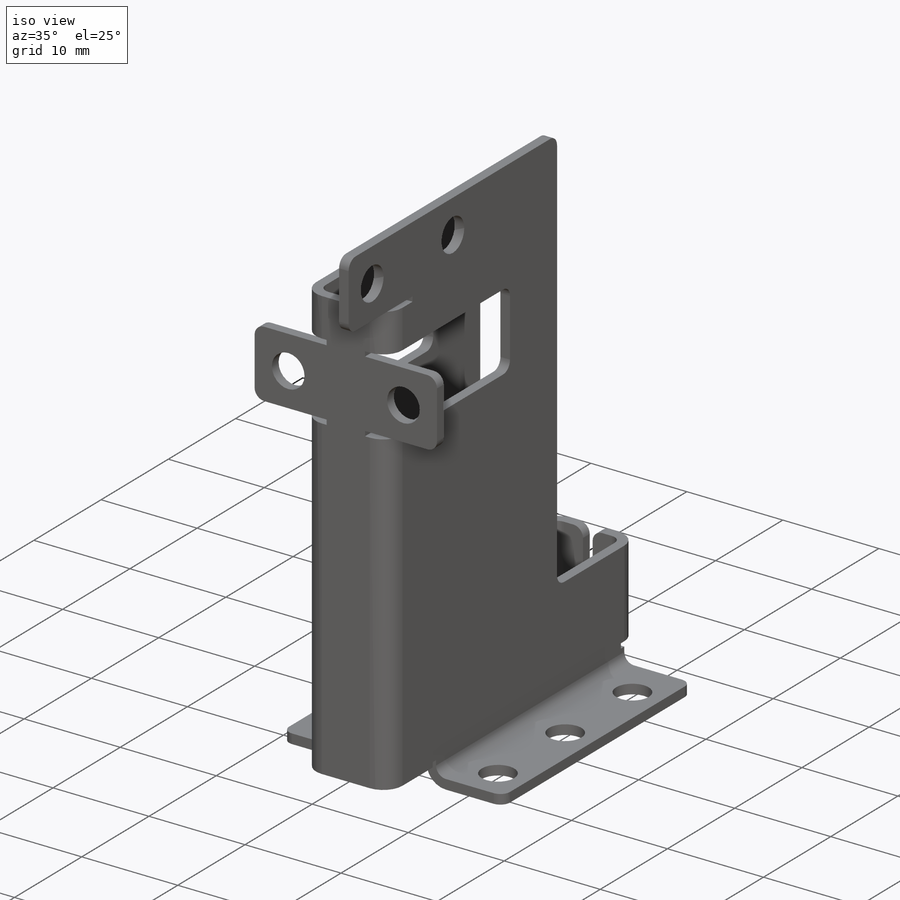
[diagram: iso view]
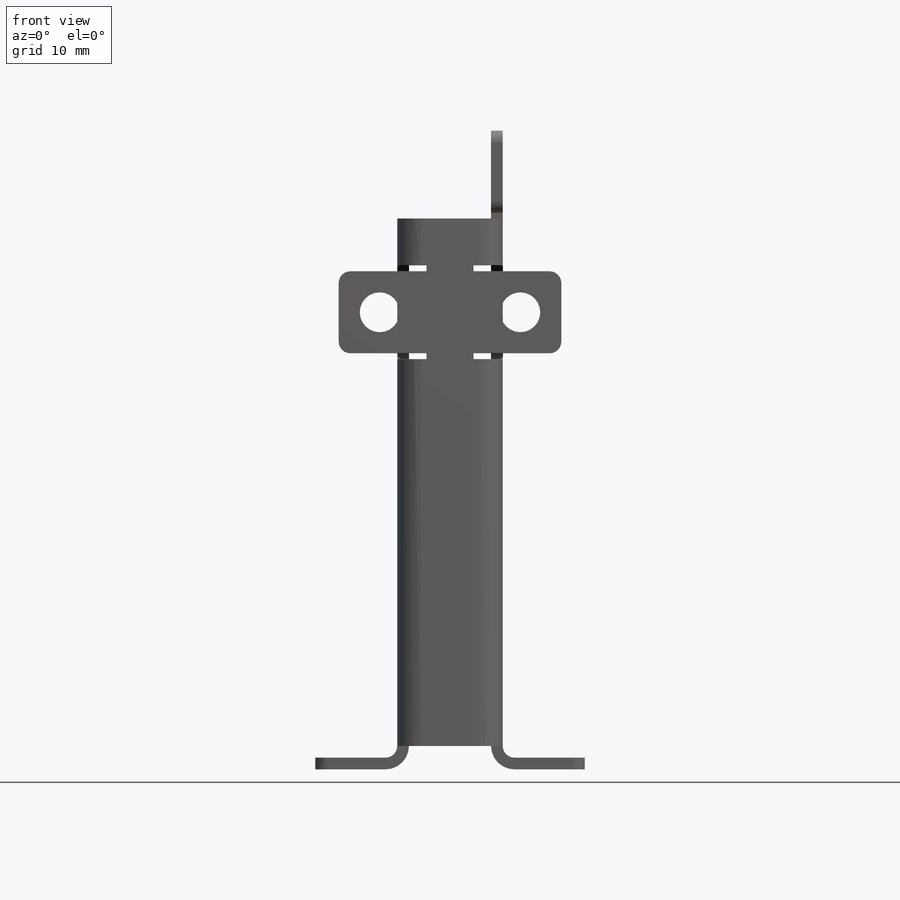
[diagram: front view]
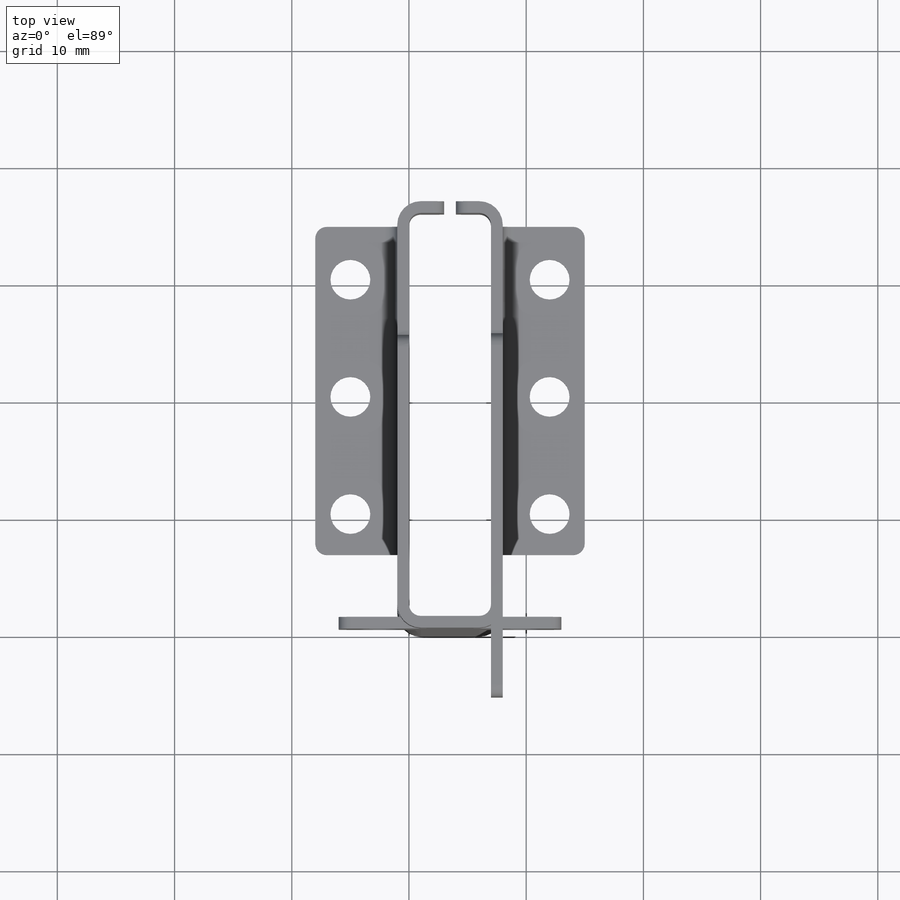
[diagram: top view]
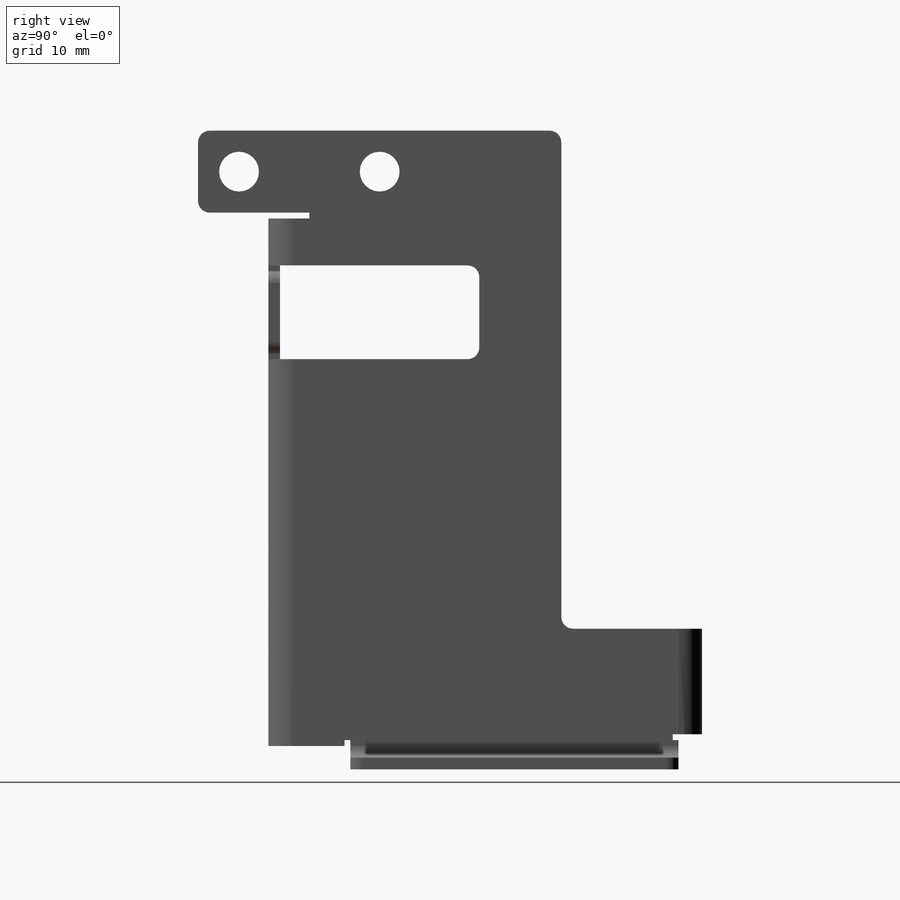
[diagram: right view]
SOLIDWORKS PART (.sldprt)
format: sldprt  version: not decoded by parser v0  size: 830,464 bytes
history: native  units: mm
features: sketch x26, sheet_metal_op x14, fillet x6, plane x3, cut_extrude x3, material x1 + 34 further entries (+9 scaffold rows collapsed; 6 parser-record rows omitted)
feature tree (102):
  scaffold x9  (default folders/planes/origin — collapsed)
  material  "Material <nicht festgelegt>"
  plane  "Ebene vorne"
  plane  "Ebene oben"
  plane  "Ebene rechts"
  sketch  "Skizze1"  dims[c1.D6=3.4mm c1.D1=7.0mm c1.D2=45.0mm c1.D3=4.5mm c1.D4=6.0mm c1.D5=7.0mm c1.D7=3.5mm c2.D1=1.0mm c2.D2=0.5 c2.D3=0.0mm c2.D6=1000.0mm]
  sheet_metal_op  "Basis-Blech1"
  sketch  "Skizze10"  dims[c1.D1=7.0mm c1.D2=1.0mm c1.D3=25.0mm c1.D4=12.0mm c1.D5=11.0mm c1.D6=2.5mm c1.D7=2.0mm c1.D8=6.0mm c1.D9=8.5mm c2.D6=33.0mm c2.D7=10.0mm c2.D8=10.0mm c3.D7=37.5mm c3.D8=18.0mm c3.D4=11.0mm c3.D9=2.0mm c3.D10=1.0mm]
  sketch  "Skizze11"
  sketch  "Skizze19"  dims[D1=7.5mm D2=6.0mm D3=0.5mm D4=2.5mm D5=8.0mm]
  sketch  "Skizze21"  dims[c1.D1=8.0mm c2.D1=1.0mm c2.D4=90.0deg c2.D5=1.0 c2.D8=0.5mm c2.D9=0.5mm]
  sheet_metal_op  "Kantenbiegung2"
  sheet_metal_op  "Kantenbiegung5"
  sheet_metal_op  "Kantenbiegung6"  Kante-Lasche4=0
  sketch  "Skizze27"  dims[D1=9.0mm D2=3.0mm]
  sketch  "Skizze33"
  sheet_metal_op  "Kantenbiegung8"
  sheet_metal_op  "Kantenbiegung9"  Kante-Lasche5=0
  sketch  "Skizze40"
  sketch  "Skizze41"
  sheet_metal_op  "Kantenbiegung10"
  sheet_metal_op  "Kantenbiegung11"
  sketch  "Skizze42"  dims[D3=3.4mm D1=3.5mm D2=12.0mm D4=3.5mm]
  cut_extrude  "Schnitt-Linear austragen1"  [1 undecoded]
  sketch  "Skizze43"  dims[D2=3.4mm D1=4.5mm D3=3.5mm]
  cut_extrude  "Schnitt-Linear austragen2"  [1 undecoded]
  fillet  "Verrundung1"  Radius=1mm
  sketch  "Biegung-Linien1"
  sketch  "Rahmen1"
  sketch  "Skizze44"  dims[D1=1.0mm D3=1.0mm D2=19.0 D4=2.0 D5=8.0]
  cut_extrude  "Schnitt-Linear austragen3"  Depth=10mm
  sheet_metal_op  "Blech(1)"
  "Abwicklung(1)"
  sketch  "Biegung-Linien2"
  sketch  "Rahmen2"
  parser-record x6  (decoder bookkeeping rows leaked as tree rows — omitted from the tree; the rows remain in map.json)
  fillet  "Blech(2)"  Radius=2mm
  sheet_metal_op  "Abwicklung(1)"
  sketch  "Biegung-Linien2"
  sketch  "Rahmen2"
  "Abwickeln-<Kantenbiegung2>1"
  "Abwickeln-<Kantenbiegung5>1"
  "Abwickeln-<Kantenbiegung6>1"
  fillet  "Blech(5)"  Radius=2mm
  sheet_metal_op  "Abwicklung(1)"
  sketch  "Biegung-Linien2"
  sketch  "Rahmen2"
  "Abwickeln-<Kantenbiegung1>1"
  "Abwickeln-<Kantenbiegung2>1"
  "Abwickeln-<Kantenbiegung5>3"
  "Abwickeln-<Kantenbiegung6>3"
  "Abwickeln-<Kantenbiegung8>1"
  "Abwickeln-<Kantenbiegung9>1"
  fillet  "Blech(6)"  Radius=2mm
  sheet_metal_op  "Abwicklung(1)"
  sketch  "Biegung-Linien2"
  sketch  "Rahmen2"
  "Abwickeln-<Kantenbiegung1>1"
  "Abwickeln-<Kantenbiegung2>1"
  "Abwickeln-<Kantenbiegung5>3"
  "Abwickeln-<Kantenbiegung6>3"
  "Abwickeln-<Kantenbiegung8>1"
  "Abwickeln-<Kantenbiegung9>1"
  "Abwickeln-<Kantenbiegung10>1"
  "Abwickeln-<Kantenbiegung11>1"
  fillet  "Blech(7)"  Radius=2mm
  sheet_metal_op  "Abwicklung(1)"
  sketch  "Biegung-Linien2"
  sketch  "Rahmen2"
  "Abwickeln-<Kantenbiegung1>1"
  "Abwickeln-<Kantenbiegung2>1"
  "Abwickeln-<Kantenbiegung5>3"
  "Abwickeln-<Kantenbiegung6>3"
  "Abwickeln-<Kantenbiegung8>1"
  "Abwickeln-<Kantenbiegung9>1"
  "Abwickeln-<Kantenbiegung10>1"
  "Abwickeln-<Kantenbiegung11>1"
  fillet  "Blech(8)"  Radius=2mm
  sheet_metal_op  "Abwicklung(1)"
  sketch  "Biegung-Linien2"
  sketch  "Rahmen2"
  "Abwickeln-<Kantenbiegung1>1"
  "Abwickeln-<Kantenbiegung2>1"
  "Abwickeln-<Kantenbiegung5>3"
  "Abwickeln-<Kantenbiegung6>3"
  "Abwickeln-<Kantenbiegung8>1"
  "Abwickeln-<Kantenbiegung9>1"
  "Abwickeln-<Kantenbiegung10>1"
  "Abwickeln-<Kantenbiegung11>1"
decode coverage: 17 of 49 modeling features carry decoded parameters; 34 rows unclassified (native names shown)
note: 2 parameter values undecoded
note: suppression state not decoded; provenance and decode notes live in map.json
